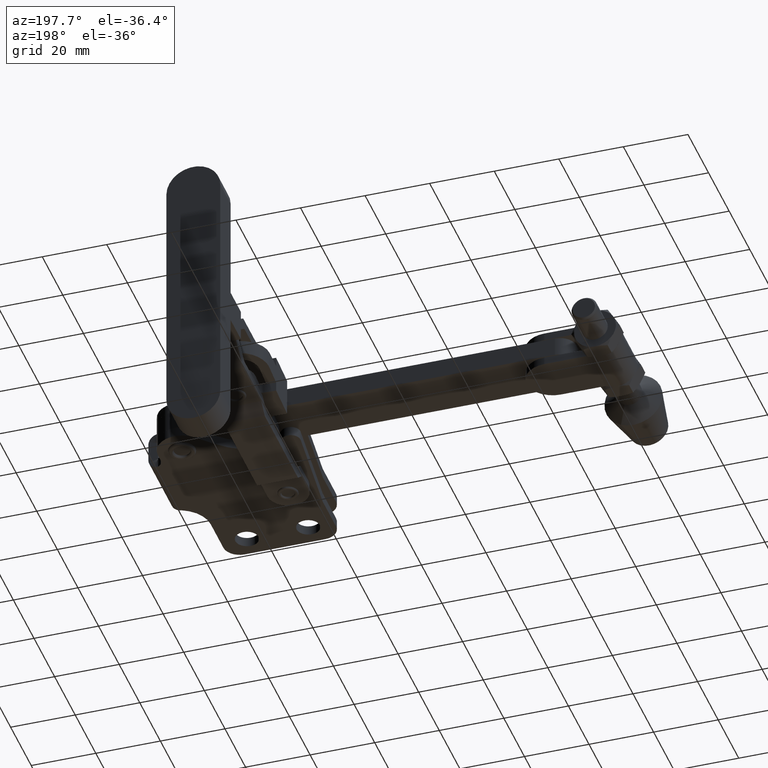
[diagram: clean part render]
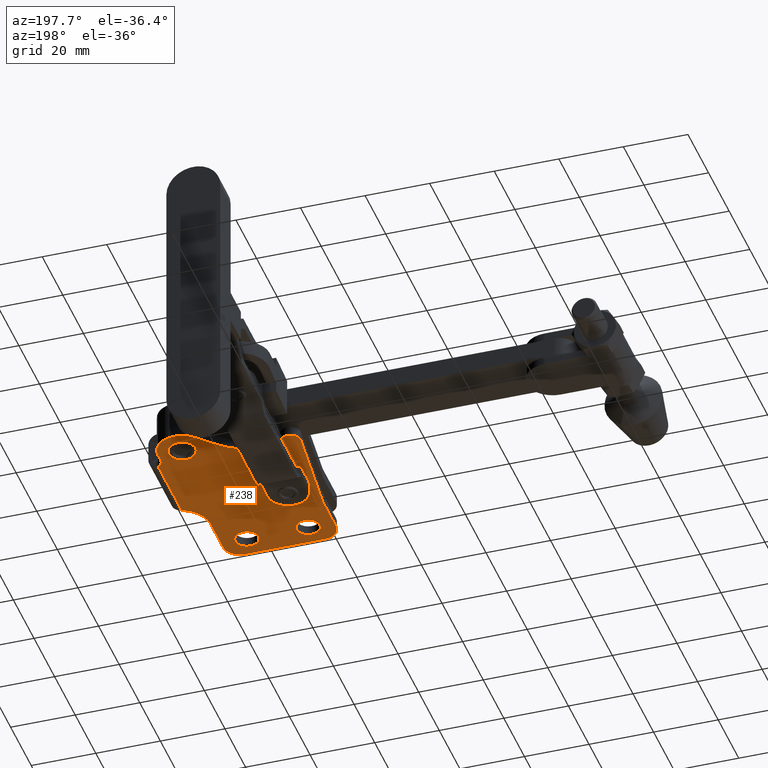
[diagram: same view with one face highlighted and labeled with its STEP entity id]
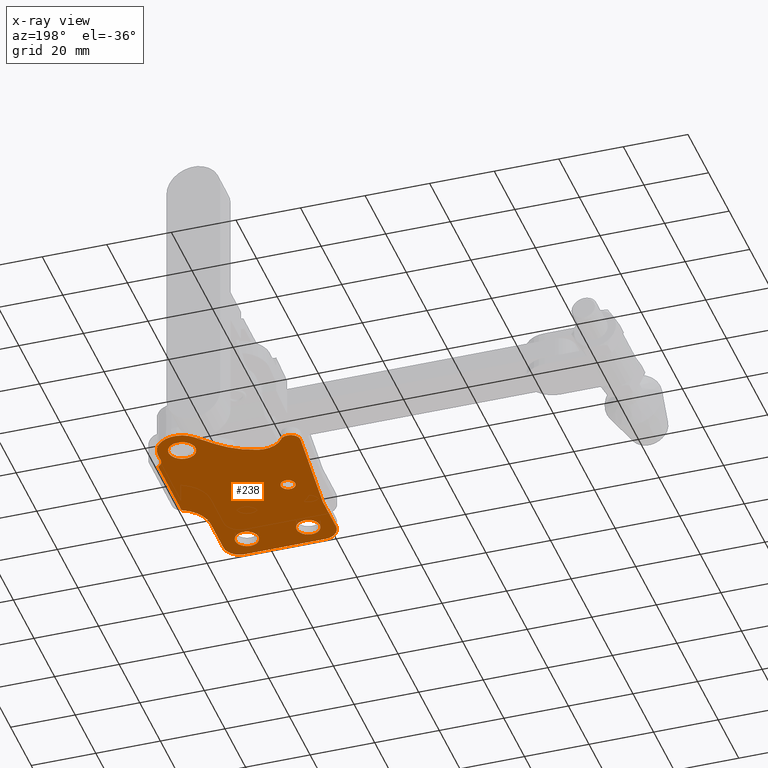
[diagram: x-ray of the same camera — body ghosted, the highlighted face saturated]
A machine part, auxiliary view. The second image highlights one B-rep face of the part: STEP entity #238.
The next image is the same camera in x-ray: the body ghosted, the highlighted face saturated — about 0% of this face is hidden behind the body in this view.
In plain terms, the highlighted planar face has unit normal (-0, -0, -1).
Its self-contained STEP definition (entity closure, byte-faithful):
#102 = CARTESIAN_POINT ( 'NONE',  ( -14.10000000000020700, -10.00000000000017600, -6.002079783401160100 ) ) ;
#129 = CARTESIAN_POINT ( 'NONE',  ( -1.700000000000136500, 37.04999999999967000, -6.002079783401252500 ) ) ;
#132 = CARTESIAN_POINT ( 'NONE',  ( -39.65000000000019000, -7.900000000000247300, -6.002079783400982500 ) ) ;
#158 = CARTESIAN_POINT ( 'NONE',  ( -17.05000000000000400, -7.900000000000289000, -6.002079783401141500 ) ) ;
#172 = ORIENTED_EDGE ( 'NONE', *, *, #3981, .T. ) ;
#215 = DIRECTION ( 'NONE',  ( 0.6911580781339206100, 0.7227036121607705000, -4.927771578968178300E-015 ) ) ;
#238 = ADVANCED_FACE ( 'NONE', ( #1077, #5484, #7447, #5228, #9654 ), #2120, .T. ) ;
#249 = EDGE_LOOP ( 'NONE', ( #5235, #9125 ) ) ;
#335 = EDGE_CURVE ( 'NONE', #6227, #1853, #6028, .T. ) ;
#357 = DIRECTION ( 'NONE',  ( -1.000000000000000000, 1.942890293094024300E-015, 6.973588373426766900E-015 ) ) ;
#376 = LINE ( 'NONE', #9695, #2309 ) ;
#452 = CARTESIAN_POINT ( 'NONE',  ( -44.14000000000012100, 34.49999999999977300, -6.002079783400957600 ) ) ;
#474 = ORIENTED_EDGE ( 'NONE', *, *, #7267, .F. ) ;
#488 = ORIENTED_EDGE ( 'NONE', *, *, #5815, .F. ) ;
#713 = ORIENTED_EDGE ( 'NONE', *, *, #1725, .T. ) ;
#748 = DIRECTION ( 'NONE',  ( -1.000000000000000000, 0.0000000000000000000, 6.897097695057341100E-015 ) ) ;
#880 = VERTEX_POINT ( 'NONE', #3218 ) ;
#901 = CARTESIAN_POINT ( 'NONE',  ( -39.00000000000007800, -15.00000000000017900, -6.002079783400985100 ) ) ;
#923 = VERTEX_POINT ( 'NONE', #7085 ) ;
#945 = DIRECTION ( 'NONE',  ( -1.000000000000000000, 2.312964634635777400E-015, 6.938893903907332500E-015 ) ) ;
#951 = ORIENTED_EDGE ( 'NONE', *, *, #3250, .T. ) ;
#964 = ORIENTED_EDGE ( 'NONE', *, *, #9239, .F. ) ;
#976 = VERTEX_POINT ( 'NONE', #901 ) ;
#981 = DIRECTION ( 'NONE',  ( -1.000000000000000000, 1.927470528863093300E-015, 6.987080667128714100E-015 ) ) ;
#1035 = CARTESIAN_POINT ( 'NONE',  ( -3.018960108299474600, 34.35549740532385200, -6.002079785918842200 ) ) ;
#1077 = FACE_BOUND ( 'NONE', #3620, .T. ) ;
#1081 = DIRECTION ( 'NONE',  ( -6.980708268828761000E-015, -1.425185458295645400E-016, -1.000000000000000000 ) ) ;
#1175 = EDGE_CURVE ( 'NONE', #4611, #976, #5995, .T. ) ;
#1264 = VERTEX_POINT ( 'NONE', #6692 ) ;
#1272 = LINE ( 'NONE', #6413, #5168 ) ;
#1325 = AXIS2_PLACEMENT_3D ( 'NONE', #7466, #7398, #7360 ) ;
#1385 = CIRCLE ( 'NONE', #9064, 2.250000000000001800 ) ;
#1402 = ORIENTED_EDGE ( 'NONE', *, *, #7278, .F. ) ;
#1495 = ORIENTED_EDGE ( 'NONE', *, *, #10731, .F. ) ;
#1547 = AXIS2_PLACEMENT_3D ( 'NONE', #129, #5925, #945 ) ;
#1555 = CARTESIAN_POINT ( 'NONE',  ( -32.45000000000009500, -7.900000000000260600, -6.002079783401033100 ) ) ;
#1571 = VECTOR ( 'NONE', #4771, 1000.000000000000000 ) ;
#1572 = EDGE_CURVE ( 'NONE', #1853, #4326, #6509, .T. ) ;
#1673 = LINE ( 'NONE', #7214, #3625 ) ;
#1720 = DIRECTION ( 'NONE',  ( -6.980708268828761000E-015, -1.425185458295645400E-016, -1.000000000000000000 ) ) ;
#1725 = EDGE_CURVE ( 'NONE', #5398, #2139, #1673, .T. ) ;
#1820 = CARTESIAN_POINT ( 'NONE',  ( -47.14000000000005700, 34.49999999999978000, -6.002079783400936300 ) ) ;
#1825 = AXIS2_PLACEMENT_3D ( 'NONE', #2055, #7873, #2874 ) ;
#1842 = ORIENTED_EDGE ( 'NONE', *, *, #335, .T. ) ;
#1853 = VERTEX_POINT ( 'NONE', #3168 ) ;
#1911 = ORIENTED_EDGE ( 'NONE', *, *, #7486, .T. ) ;
#2026 = VERTEX_POINT ( 'NONE', #6711 ) ;
#2055 = CARTESIAN_POINT ( 'NONE',  ( -44.14000000000012100, 34.49999999999977300, -6.002079783400957600 ) ) ;
#2080 = CARTESIAN_POINT ( 'NONE',  ( -39.00000000000007100, -10.00000000000007100, -6.002079783400986900 ) ) ;
#2108 = EDGE_CURVE ( 'NONE', #9488, #9815, #7518, .T. ) ;
#2120 = PLANE ( 'NONE',  #6816 ) ;
#2139 = VERTEX_POINT ( 'NONE', #8728 ) ;
#2219 = VECTOR ( 'NONE', #4895, 1000.000000000000000 ) ;
#2270 = EDGE_CURVE ( 'NONE', #4326, #8935, #1272, .T. ) ;
#2309 = VECTOR ( 'NONE', #8864, 1000.000000000000000 ) ;
#2447 = DIRECTION ( 'NONE',  ( 6.980708268828761000E-015, 1.425185458295645400E-016, 1.000000000000000000 ) ) ;
#2508 = AXIS2_PLACEMENT_3D ( 'NONE', #9881, #9850, #9741 ) ;
#2518 = CARTESIAN_POINT ( 'NONE',  ( -39.05000000000019600, 14.09999999999975100, -6.002079783400990500 ) ) ;
#2699 = CARTESIAN_POINT ( 'NONE',  ( -20.65000000000005200, -7.900000000000281900, -6.002079783401115700 ) ) ;
#2813 = VERTEX_POINT ( 'NONE', #3142 ) ;
#2874 = DIRECTION ( 'NONE',  ( -1.000000000000000000, 2.312964634635794300E-015, 6.938893903907382200E-015 ) ) ;
#2876 = ORIENTED_EDGE ( 'NONE', *, *, #2108, .F. ) ;
#2905 = DIRECTION ( 'NONE',  ( -1.000000000000000000, 1.734723475976769400E-015, 6.938893903907077700E-015 ) ) ;
#2943 = CIRCLE ( 'NONE', #1825, 2.999999999999933400 ) ;
#2986 = AXIS2_PLACEMENT_3D ( 'NONE', #6721, #1720, #7548 ) ;
#3125 = AXIS2_PLACEMENT_3D ( 'NONE', #7352, #6646, #6636 ) ;
#3142 = CARTESIAN_POINT ( 'NONE',  ( -34.55000000000018900, 14.09999999999975100, -6.002079783401021600 ) ) ;
#3168 = CARTESIAN_POINT ( 'NONE',  ( -17.62027709120588500, 44.98368558600410700, -6.002079783401143200 ) ) ;
#3218 = CARTESIAN_POINT ( 'NONE',  ( -16.34999737848128000, 39.79999999999994700, -6.002079783401152100 ) ) ;
#3250 = EDGE_CURVE ( 'NONE', #5821, #4611, #9313, .T. ) ;
#3441 = ORIENTED_EDGE ( 'NONE', *, *, #5418, .T. ) ;
#3500 = CARTESIAN_POINT ( 'NONE',  ( -3.018960108299520800, 11.54236631933042100, -6.002079785918839500 ) ) ;
#3620 = EDGE_LOOP ( 'NONE', ( #1495, #2876 ) ) ;
#3625 = VECTOR ( 'NONE', #8991, 999.9999999999998900 ) ;
#3639 = DIRECTION ( 'NONE',  ( -6.980708268828761000E-015, -1.425185458295645400E-016, -1.000000000000000000 ) ) ;
#3717 = ORIENTED_EDGE ( 'NONE', *, *, #1175, .T. ) ;
#3751 = DIRECTION ( 'NONE',  ( -6.980708268828757000E-015, -1.425185458295645400E-016, -1.000000000000000000 ) ) ;
#3759 = AXIS2_PLACEMENT_3D ( 'NONE', #10599, #10672, #10484 ) ;
#3770 = CIRCLE ( 'NONE', #2986, 3.600000000000047600 ) ;
#3778 = DIRECTION ( 'NONE',  ( -1.000000000000000000, 1.887379141862766100E-015, 6.980708268828757000E-015 ) ) ;
#3830 = CARTESIAN_POINT ( 'NONE',  ( -41.69559368669180800, 36.23921757565216200, -6.002079783400972700 ) ) ;
#3860 = VERTEX_POINT ( 'NONE', #1820 ) ;
#3895 = CARTESIAN_POINT ( 'NONE',  ( -9.100000000000166600, 2.342271120390447600, -6.002079783401198300 ) ) ;
#3948 = CIRCLE ( 'NONE', #5288, 2.250000000000001800 ) ;
#3981 = EDGE_CURVE ( 'NONE', #2139, #3860, #7564, .T. ) ;
#4086 = CIRCLE ( 'NONE', #5077, 7.499999999999985800 ) ;
#4163 = EDGE_CURVE ( 'NONE', #880, #2026, #9889, .T. ) ;
#4236 = EDGE_CURVE ( 'NONE', #8230, #5821, #6385, .T. ) ;
#4283 = CARTESIAN_POINT ( 'NONE',  ( -9.100000000000166600, 2.342271120390447600, -6.002079783401198300 ) ) ;
#4326 = VERTEX_POINT ( 'NONE', #7683 ) ;
#4402 = ORIENTED_EDGE ( 'NONE', *, *, #4236, .T. ) ;
#4477 = ORIENTED_EDGE ( 'NONE', *, *, #2270, .T. ) ;
#4611 = VERTEX_POINT ( 'NONE', #8726 ) ;
#4622 = EDGE_CURVE ( 'NONE', #6640, #8230, #10498, .T. ) ;
#4698 = ORIENTED_EDGE ( 'NONE', *, *, #8737, .T. ) ;
#4722 = CIRCLE ( 'NONE', #4869, 3.600000000000047600 ) ;
#4771 = DIRECTION ( 'NONE',  ( -1.000000000000000000, 2.026714360816727600E-015, 6.980708268828757000E-015 ) ) ;
#4869 = AXIS2_PLACEMENT_3D ( 'NONE', #8605, #3639, #9465 ) ;
#4892 = CIRCLE ( 'NONE', #5106, 5.000000000000108400 ) ;
#4895 = DIRECTION ( 'NONE',  ( 1.485854440298705200E-015, -1.000000000000000000, 1.425185458295541100E-016 ) ) ;
#4942 = EDGE_LOOP ( 'NONE', ( #1402, #9434, #4402, #951, #3717, #3441, #6101, #713, #172, #6025, #1911, #4698, #1842, #9481, #4477, #10120 ) ) ;
#5017 = CIRCLE ( 'NONE', #5249, 3.600000000000047600 ) ;
#5029 = CARTESIAN_POINT ( 'NONE',  ( -39.00000000000007800, -15.00000000000018300, -6.002079783400985100 ) ) ;
#5077 = AXIS2_PLACEMENT_3D ( 'NONE', #7426, #2447, #8254 ) ;
#5106 = AXIS2_PLACEMENT_3D ( 'NONE', #2080, #7896, #2905 ) ;
#5110 = CARTESIAN_POINT ( 'NONE',  ( -9.100000000000148900, -10.00000000000019000, -6.002079783401196500 ) ) ;
#5168 = VECTOR ( 'NONE', #6450, 1000.000000000000000 ) ;
#5228 = FACE_OUTER_BOUND ( 'NONE', #4942, .T. ) ;
#5235 = ORIENTED_EDGE ( 'NONE', *, *, #6602, .F. ) ;
#5249 = AXIS2_PLACEMENT_3D ( 'NONE', #158, #5953, #981 ) ;
#5256 = CARTESIAN_POINT ( 'NONE',  ( -12.20000000000009300, 39.79999999999970600, -6.002079783401181400 ) ) ;
#5274 = VERTEX_POINT ( 'NONE', #1035 ) ;
#5288 = AXIS2_PLACEMENT_3D ( 'NONE', #6062, #1081, #6910 ) ;
#5293 = DIRECTION ( 'NONE',  ( -1.000000000000000000, 1.850371707708589200E-015, 6.938893903907209400E-015 ) ) ;
#5315 = DIRECTION ( 'NONE',  ( 6.980708268828761000E-015, 1.425185458295645400E-016, 1.000000000000000000 ) ) ;
#5398 = VERTEX_POINT ( 'NONE', #6994 ) ;
#5408 = CIRCLE ( 'NONE', #9427, 24.99999999999999300 ) ;
#5418 = EDGE_CURVE ( 'NONE', #976, #923, #4892, .T. ) ;
#5484 = FACE_BOUND ( 'NONE', #7792, .T. ) ;
#5519 = CARTESIAN_POINT ( 'NONE',  ( -4.700000000000091700, 37.04999999999968500, -6.002079783401231200 ) ) ;
#5534 = EDGE_CURVE ( 'NONE', #923, #5398, #376, .T. ) ;
#5722 = DIRECTION ( 'NONE',  ( -6.980708268828761000E-015, -1.425185458295645400E-016, -1.000000000000000000 ) ) ;
#5815 = EDGE_CURVE ( 'NONE', #1264, #9896, #5017, .T. ) ;
#5821 = VERTEX_POINT ( 'NONE', #5110 ) ;
#5907 = VECTOR ( 'NONE', #8555, 1000.000000000000000 ) ;
#5925 = DIRECTION ( 'NONE',  ( 6.980708268828761000E-015, 1.425185458295645400E-016, 1.000000000000000000 ) ) ;
#5953 = DIRECTION ( 'NONE',  ( -6.980708268828761000E-015, -1.425185458295645400E-016, -1.000000000000000000 ) ) ;
#5995 = LINE ( 'NONE', #5029, #1571 ) ;
#6025 = ORIENTED_EDGE ( 'NONE', *, *, #8389, .T. ) ;
#6028 = LINE ( 'NONE', #8296, #10176 ) ;
#6029 = CARTESIAN_POINT ( 'NONE',  ( -22.23240969598095500, 40.16104804665157200, -6.002079783401112100 ) ) ;
#6062 = CARTESIAN_POINT ( 'NONE',  ( -36.80000000000019600, 14.09999999999975100, -6.002079783401005600 ) ) ;
#6101 = ORIENTED_EDGE ( 'NONE', *, *, #5534, .T. ) ;
#6227 = VERTEX_POINT ( 'NONE', #6029 ) ;
#6385 = LINE ( 'NONE', #3895, #2219 ) ;
#6413 = CARTESIAN_POINT ( 'NONE',  ( -4.700000000000077400, 39.79999999999969200, -6.002079783401232900 ) ) ;
#6450 = DIRECTION ( 'NONE',  ( -2.518187678581604500E-015, -1.000000000000000000, 1.425185458295820200E-016 ) ) ;
#6509 = CIRCLE ( 'NONE', #7031, 7.500000000000020400 ) ;
#6588 = DIRECTION ( 'NONE',  ( -1.000000000000000000, 1.734723475976786800E-015, 6.938893903907147100E-015 ) ) ;
#6602 = EDGE_CURVE ( 'NONE', #2026, #880, #8269, .T. ) ;
#6636 = DIRECTION ( 'NONE',  ( 1.000000000000000000, -1.908195823574485000E-015, -6.938893903907218900E-015 ) ) ;
#6640 = VERTEX_POINT ( 'NONE', #3500 ) ;
#6646 = DIRECTION ( 'NONE',  ( 6.980708268828761000E-015, 1.425185458295645400E-016, 1.000000000000000000 ) ) ;
#6692 = CARTESIAN_POINT ( 'NONE',  ( -13.44999999999995500, -7.900000000000295200, -6.002079783401166300 ) ) ;
#6711 = CARTESIAN_POINT ( 'NONE',  ( -8.050002621518698800, 39.79999999999994700, -6.002079783401210700 ) ) ;
#6721 = CARTESIAN_POINT ( 'NONE',  ( -36.05000000000014600, -7.900000000000254400, -6.002079783401007300 ) ) ;
#6816 = AXIS2_PLACEMENT_3D ( 'NONE', #452, #3751, #3778 ) ;
#6910 = DIRECTION ( 'NONE',  ( -1.000000000000000000, 0.0000000000000000000, 6.938893903907222900E-015 ) ) ;
#6994 = CARTESIAN_POINT ( 'NONE',  ( -44.00000000000014200, 2.999999999999905400, -6.002079783400954000 ) ) ;
#7031 = AXIS2_PLACEMENT_3D ( 'NONE', #5256, #10571, #5293 ) ;
#7085 = CARTESIAN_POINT ( 'NONE',  ( -44.00000000000017100, -10.00000000000006400, -6.002079783400952300 ) ) ;
#7172 = CARTESIAN_POINT ( 'NONE',  ( -36.80000000000019600, 14.09999999999975100, -6.002079783401005600 ) ) ;
#7214 = CARTESIAN_POINT ( 'NONE',  ( -44.00000000000014200, 2.999999999999905400, -6.002079783400954000 ) ) ;
#7267 = EDGE_CURVE ( 'NONE', #7561, #2813, #3948, .T. ) ;
#7278 = EDGE_CURVE ( 'NONE', #6640, #5274, #8365, .T. ) ;
#7352 = CARTESIAN_POINT ( 'NONE',  ( 0.8999999999998349300, 2.342271120390433800, -6.002079783401267600 ) ) ;
#7360 = DIRECTION ( 'NONE',  ( -1.000000000000000000, 0.0000000000000000000, 6.897097695057341100E-015 ) ) ;
#7398 = DIRECTION ( 'NONE',  ( -6.980708268828761000E-015, -1.425185458295645400E-016, -1.000000000000000000 ) ) ;
#7410 = EDGE_LOOP ( 'NONE', ( #474, #9572 ) ) ;
#7426 = CARTESIAN_POINT ( 'NONE',  ( -35.58457790342095700, 40.58726151478320800, -6.002079783401018000 ) ) ;
#7447 = FACE_BOUND ( 'NONE', #249, .T. ) ;
#7466 = CARTESIAN_POINT ( 'NONE',  ( -12.19999999999998900, 39.79999999999994700, -6.002079783401181400 ) ) ;
#7486 = EDGE_CURVE ( 'NONE', #10486, #9373, #4086, .T. ) ;
#7518 = CIRCLE ( 'NONE', #2508, 3.600000000000047600 ) ;
#7548 = DIRECTION ( 'NONE',  ( -1.000000000000000000, 1.927470528863093300E-015, 6.987080667128714100E-015 ) ) ;
#7561 = VERTEX_POINT ( 'NONE', #2518 ) ;
#7564 = CIRCLE ( 'NONE', #3759, 2.999999999999933400 ) ;
#7683 = CARTESIAN_POINT ( 'NONE',  ( -4.700000000000077400, 39.79999999999969200, -6.002079783401232900 ) ) ;
#7696 = DIRECTION ( 'NONE',  ( -6.980708268828761000E-015, -1.425185458295645400E-016, -1.000000000000000000 ) ) ;
#7739 = CARTESIAN_POINT ( 'NONE',  ( -3.018960108299475900, 34.49999999999968700, -6.002079783401243600 ) ) ;
#7792 = EDGE_LOOP ( 'NONE', ( #964, #488 ) ) ;
#7873 = DIRECTION ( 'NONE',  ( -6.980708268828761000E-015, -1.425185458295645400E-016, -1.000000000000000000 ) ) ;
#7896 = DIRECTION ( 'NONE',  ( -6.980708268828761000E-015, -1.425185458295645400E-016, -1.000000000000000000 ) ) ;
#7994 = CARTESIAN_POINT ( 'NONE',  ( -33.56368271917268900, 33.36465930683337400, -6.002079783401030400 ) ) ;
#8230 = VERTEX_POINT ( 'NONE', #4283 ) ;
#8254 = DIRECTION ( 'NONE',  ( -1.000000000000000000, 1.850371707708597900E-015, 6.938893903907241800E-015 ) ) ;
#8269 = CIRCLE ( 'NONE', #9648, 4.149997378481290700 ) ;
#8296 = CARTESIAN_POINT ( 'NONE',  ( -22.23240969598095500, 40.16104804665157200, -6.002079783401112100 ) ) ;
#8365 = LINE ( 'NONE', #7739, #5907 ) ;
#8389 = EDGE_CURVE ( 'NONE', #3860, #10486, #2943, .T. ) ;
#8467 = EDGE_CURVE ( 'NONE', #2813, #7561, #1385, .T. ) ;
#8555 = DIRECTION ( 'NONE',  ( 1.887379141862765700E-015, 1.000000000000000000, -1.425185458295776300E-016 ) ) ;
#8605 = CARTESIAN_POINT ( 'NONE',  ( -17.05000000000000400, -7.900000000000289000, -6.002079783401141500 ) ) ;
#8726 = CARTESIAN_POINT ( 'NONE',  ( -14.10000000000021600, -15.00000000000023300, -6.002079783401158300 ) ) ;
#8728 = CARTESIAN_POINT ( 'NONE',  ( -47.12506452503650000, 34.20101876084089600, -6.002079783400934500 ) ) ;
#8737 = EDGE_CURVE ( 'NONE', #9373, #6227, #5408, .T. ) ;
#8864 = DIRECTION ( 'NONE',  ( 1.887379141862765700E-015, 1.000000000000000000, -1.425185458295776300E-016 ) ) ;
#8880 = DIRECTION ( 'NONE',  ( -1.000000000000000000, 0.0000000000000000000, 6.938893903907222900E-015 ) ) ;
#8935 = VERTEX_POINT ( 'NONE', #5519 ) ;
#8991 = DIRECTION ( 'NONE',  ( -0.09966041305296159700, 0.9950215083454795300, 5.538912510351608200E-016 ) ) ;
#9064 = AXIS2_PLACEMENT_3D ( 'NONE', #7172, #9086, #8880 ) ;
#9086 = DIRECTION ( 'NONE',  ( -6.980708268828761000E-015, -1.425185458295645400E-016, -1.000000000000000000 ) ) ;
#9125 = ORIENTED_EDGE ( 'NONE', *, *, #4163, .F. ) ;
#9223 = EDGE_CURVE ( 'NONE', #8935, #5274, #10191, .T. ) ;
#9239 = EDGE_CURVE ( 'NONE', #9896, #1264, #4722, .T. ) ;
#9313 = CIRCLE ( 'NONE', #9795, 5.000000000000058600 ) ;
#9373 = VERTEX_POINT ( 'NONE', #7994 ) ;
#9427 = AXIS2_PLACEMENT_3D ( 'NONE', #10273, #5315, #357 ) ;
#9434 = ORIENTED_EDGE ( 'NONE', *, *, #4622, .T. ) ;
#9465 = DIRECTION ( 'NONE',  ( -1.000000000000000000, 1.927470528863093300E-015, 6.987080667128714100E-015 ) ) ;
#9481 = ORIENTED_EDGE ( 'NONE', *, *, #1572, .T. ) ;
#9488 = VERTEX_POINT ( 'NONE', #1555 ) ;
#9572 = ORIENTED_EDGE ( 'NONE', *, *, #8467, .F. ) ;
#9648 = AXIS2_PLACEMENT_3D ( 'NONE', #10687, #5722, #748 ) ;
#9654 = FACE_BOUND ( 'NONE', #7410, .T. ) ;
#9695 = CARTESIAN_POINT ( 'NONE',  ( -44.00000000000014200, 2.999999999999905400, -6.002079783400954000 ) ) ;
#9741 = DIRECTION ( 'NONE',  ( -1.000000000000000000, 1.927470528863093300E-015, 6.987080667128714100E-015 ) ) ;
#9795 = AXIS2_PLACEMENT_3D ( 'NONE', #102, #7696, #6588 ) ;
#9815 = VERTEX_POINT ( 'NONE', #132 ) ;
#9850 = DIRECTION ( 'NONE',  ( -6.980708268828761000E-015, -1.425185458295645400E-016, -1.000000000000000000 ) ) ;
#9881 = CARTESIAN_POINT ( 'NONE',  ( -36.05000000000014600, -7.900000000000254400, -6.002079783401007300 ) ) ;
#9889 = CIRCLE ( 'NONE', #1325, 4.149997378481290700 ) ;
#9896 = VERTEX_POINT ( 'NONE', #2699 ) ;
#10120 = ORIENTED_EDGE ( 'NONE', *, *, #9223, .T. ) ;
#10176 = VECTOR ( 'NONE', #215, 1000.000000000000100 ) ;
#10191 = CIRCLE ( 'NONE', #1547, 2.999999999999955100 ) ;
#10273 = CARTESIAN_POINT ( 'NONE',  ( -40.30000000000022500, 57.43999999999956400, -6.002079783400986900 ) ) ;
#10484 = DIRECTION ( 'NONE',  ( -1.000000000000000000, 2.312964634635794300E-015, 6.938893903907382200E-015 ) ) ;
#10486 = VERTEX_POINT ( 'NONE', #3830 ) ;
#10498 = CIRCLE ( 'NONE', #3125, 10.00000000000001400 ) ;
#10571 = DIRECTION ( 'NONE',  ( -6.980708268828761000E-015, -1.425185458295645400E-016, -1.000000000000000000 ) ) ;
#10599 = CARTESIAN_POINT ( 'NONE',  ( -44.14000000000012100, 34.49999999999977300, -6.002079783400957600 ) ) ;
#10672 = DIRECTION ( 'NONE',  ( -6.980708268828761000E-015, -1.425185458295645400E-016, -1.000000000000000000 ) ) ;
#10687 = CARTESIAN_POINT ( 'NONE',  ( -12.19999999999998900, 39.79999999999994700, -6.002079783401181400 ) ) ;
#10731 = EDGE_CURVE ( 'NONE', #9815, #9488, #3770, .T. ) ;